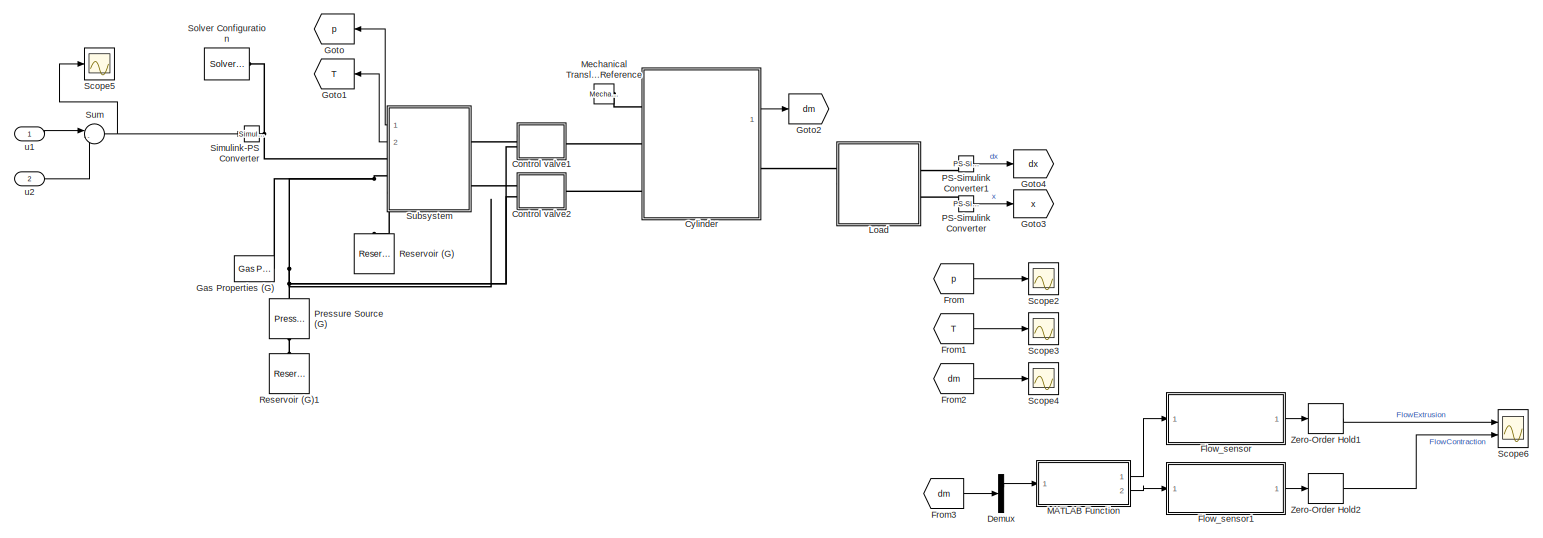
[diagram: root canvas - part 1/2, full width, middle band]
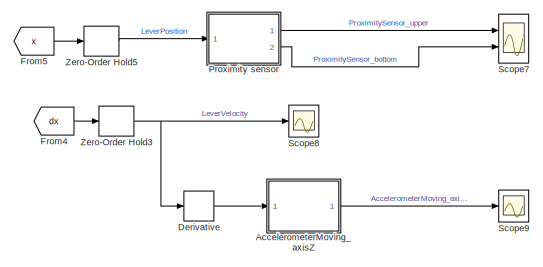
[diagram: root canvas - part 2/2, bottom right region]
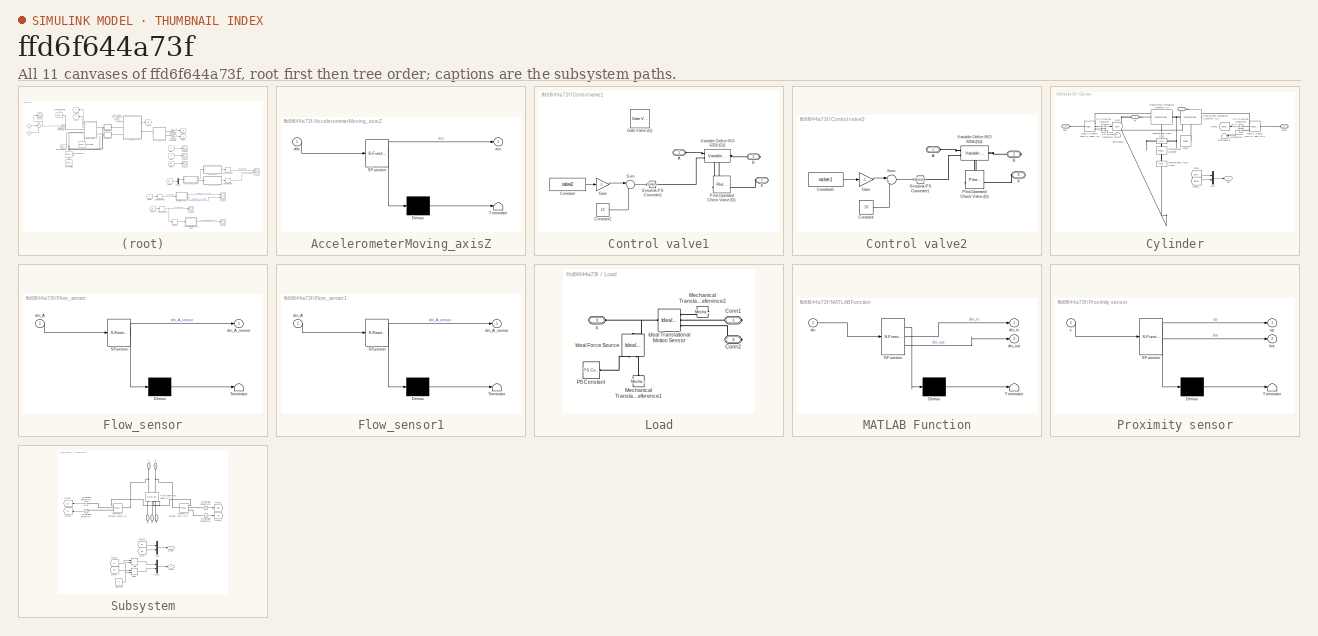
[diagram: thumbnail index - all 11 canvases of the model, root first then tree order]
MODEL slx_ffd6f644a73f
KIND model
CONFIG AbsTol = auto
CONFIG EnableMultiTasking = off
CONFIG FixedStep = Ts
CONFIG MaxStep = auto
CONFIG MinStep = auto
CONFIG RelTol = 1e-3
CONFIG SampleTimeConstraint = Unconstrained
CONFIG SolverName = VariableStepAuto
CONFIG StartTime = 0.0
CONFIG StopTime = 10
BLOCK [SubSystem] AccelerometerMoving_axisZ
  ErrorFcn = Stateflow.Translate.translate
  PermitHierarchicalResolution = ExplicitOnly
  Ports = [1, 1]
  RequestExecContextInheritance = off
  SFBlockType = MATLAB Function
  TreatAsAtomicUnit = on
BLOCK [Demux] AccelerometerMoving_axisZ/ Demux 
  Outputs = 1
  Ports = [1, 1]
BLOCK [S-Function] AccelerometerMoving_axisZ/ SFunction 
  EnableBusSupport = on
  FunctionName = sf_sfun
  Parameters = acc_C,acc_enable,acc_noise_var
  PortCounts = [1 2]
  Ports = [1, 2]
  SFcnIsStateOwnerBlock = off
  SFunctionDeploymentMode = off
  Tag = Stateflow S-Function 1
BLOCK [Terminator] AccelerometerMoving_axisZ/ Terminator 
BLOCK [Outport] AccelerometerMoving_axisZ/acc
BLOCK [Inport] AccelerometerMoving_axisZ/ddx
BLOCK [SubSystem] Control valve1
  Ports = [0, 0, 0, 0, 0, 2, 1]
  RequestExecContextInheritance = off
BLOCK [PMIOPort] Control valve1/A
  Side = Left
BLOCK [PMIOPort] Control valve1/B
  Port = 2
  Side = Right
BLOCK [Constant] Control valve1/Constant
  Value = valve2
BLOCK [Constant] Control valve1/Constant1
  Value = 10
BLOCK [Gain] Control valve1/Gain
  Gain = -1
BLOCK [Reference] Control valve1/Gate Valve (G)  REF=SimscapeFluids_lib/Gas/Valves & Orifices/Flow Control Valves/Gate Valve (G)
  Commented = on
  Ports = [0, 0, 0, 0, 0, 2, 1]
  SourceBlock = SimscapeFluids_lib/Gas/Valves & Orifices/Flow Control Valves/Gate Valve (G)
  SourceProductBaseCode = SH
  SourceType = Gate Valve (G)
BLOCK [Reference] Control valve1/Pilot-Operated Check Valve (G)  REF=SimscapeFluids_lib/Gas/Valves & Orifices/Directional Control
Valves/Pilot-Operated Check
Valve (G)
  NameLocation = top
  Ports = [0, 0, 0, 0, 0, 2, 1]
  SourceBlock = SimscapeFluids_lib/Gas/Valves & Orifices/Directional Control\nValves/Pilot-Operated Check\nValve (G)
  SourceProductBaseCode = SH
  SourceType = Pilot-Operated Check\nValve (G)
BLOCK [Reference] Control valve1/Simulink-PS Converter1  REF=nesl_utility/Simulink-PS
Converter
  Ports = [1, 0, 0, 0, 0, 0, 1]
  SourceBlock = nesl_utility/Simulink-PS\nConverter
  SourceProductBaseCode = PW,SS
  SourceType = Simulink-PS\nConverter
BLOCK [Sum] Control valve1/Sum
  Inputs = |++
  Ports = [2, 1]
BLOCK [Reference] Control valve1/Variable Orifice ISO 6358 (G)1  REF=SimscapeFluids_lib/Gas/Valves & Orifices/Variable Orifice ISO
6358 (G)
  Ports = [0, 0, 0, 0, 0, 2, 1]
  SourceBlock = SimscapeFluids_lib/Gas/Valves & Orifices/Variable Orifice ISO\n6358 (G)
  SourceProductBaseCode = SH
  SourceType = Variable Orifice ISO\n6358 (G)
BLOCK [PMIOPort] Control valve1/X
  NameLocation = top
  Port = 3
  Side = Left
BLOCK [SubSystem] Control valve2
  Ports = [0, 0, 0, 0, 0, 2, 1]
  RequestExecContextInheritance = off
BLOCK [PMIOPort] Control valve2/A
  Side = Left
BLOCK [PMIOPort] Control valve2/B
  Port = 2
  Side = Right
BLOCK [Constant] Control valve2/Constant
  Value = 10
BLOCK [Constant] Control valve2/Constant1
  Value = valve1
BLOCK [Gain] Control valve2/Gain
  Gain = -1
BLOCK [Reference] Control valve2/Pilot-Operated Check Valve (G)  REF=SimscapeFluids_lib/Gas/Valves & Orifices/Directional Control
Valves/Pilot-Operated Check
Valve (G)
  NameLocation = top
  Ports = [0, 0, 0, 0, 0, 2, 1]
  SourceBlock = SimscapeFluids_lib/Gas/Valves & Orifices/Directional Control\nValves/Pilot-Operated Check\nValve (G)
  SourceProductBaseCode = SH
  SourceType = Pilot-Operated Check\nValve (G)
BLOCK [Reference] Control valve2/Simulink-PS Converter1  REF=nesl_utility/Simulink-PS
Converter
  Ports = [1, 0, 0, 0, 0, 0, 1]
  SourceBlock = nesl_utility/Simulink-PS\nConverter
  SourceProductBaseCode = PW,SS
  SourceType = Simulink-PS\nConverter
BLOCK [Sum] Control valve2/Sum
  Inputs = |++
  Ports = [2, 1]
BLOCK [Reference] Control valve2/Variable Orifice ISO 6358 (G)1  REF=SimscapeFluids_lib/Gas/Valves & Orifices/Variable Orifice ISO
6358 (G)
  Ports = [0, 0, 0, 0, 0, 2, 1]
  SourceBlock = SimscapeFluids_lib/Gas/Valves & Orifices/Variable Orifice ISO\n6358 (G)
  SourceProductBaseCode = SH
  SourceType = Variable Orifice ISO\n6358 (G)
BLOCK [PMIOPort] Control valve2/X
  NameLocation = top
  Port = 3
  Side = Left
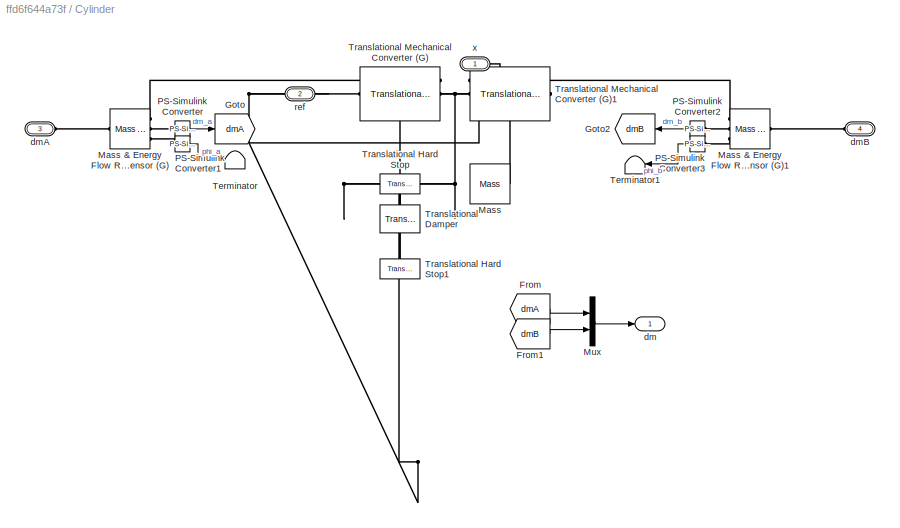
BLOCK [SubSystem] Cylinder
  Ports = [0, 1, 0, 0, 0, 3, 1]
  RequestExecContextInheritance = off
BLOCK [From] Cylinder/From
  GotoTag = dmA
BLOCK [From] Cylinder/From1
  GotoTag = dmB
  NameLocation = top
BLOCK [Goto] Cylinder/Goto
  GotoTag = dmA
BLOCK [Goto] Cylinder/Goto2
  GotoTag = dmB
  NameLocation = top
BLOCK [Reference] Cylinder/Mass  REF=fl_lib/Mechanical/Translational
Elements/Mass
  NameLocation = top
  Ports = [0, 0, 0, 0, 0, 1]
  SourceBlock = fl_lib/Mechanical/Translational\nElements/Mass
  SourceProductBaseCode = SS
  SourceType = Mass
BLOCK [Reference] Cylinder/Mass & Energy Flow Rate Sensor (G)  REF=fl_lib/Gas/Sensors/Mass & Energy Flow
Rate Sensor (G)
  Ports = [0, 0, 0, 0, 0, 1, 3]
  SourceBlock = fl_lib/Gas/Sensors/Mass & Energy Flow\nRate Sensor (G)
  SourceProductBaseCode = SS
  SourceType = Mass & Energy Flow\nRate Sensor (G)
BLOCK [Reference] Cylinder/Mass & Energy Flow Rate Sensor (G)1  REF=fl_lib/Gas/Sensors/Mass & Energy Flow
Rate Sensor (G)
  Ports = [0, 0, 0, 0, 0, 1, 3]
  SourceBlock = fl_lib/Gas/Sensors/Mass & Energy Flow\nRate Sensor (G)
  SourceProductBaseCode = SS
  SourceType = Mass & Energy Flow\nRate Sensor (G)
BLOCK [Mux] Cylinder/Mux
  DisplayOption = bar
  Inputs = 2
  Ports = [2, 1]
BLOCK [Reference] Cylinder/PS-Simulink Converter  REF=nesl_utility/PS-Simulink
Converter
  Ports = [0, 1, 0, 0, 0, 1]
  SourceBlock = nesl_utility/PS-Simulink\nConverter
  SourceProductBaseCode = PW,SS
  SourceType = PS-Simulink\nConverter
BLOCK [Reference] Cylinder/PS-Simulink Converter1  REF=nesl_utility/PS-Simulink
Converter
  Ports = [0, 1, 0, 0, 0, 1]
  SourceBlock = nesl_utility/PS-Simulink\nConverter
  SourceProductBaseCode = PW,SS
  SourceType = PS-Simulink\nConverter
BLOCK [Reference] Cylinder/PS-Simulink Converter2  REF=nesl_utility/PS-Simulink
Converter
  NameLocation = top
  Ports = [0, 1, 0, 0, 0, 1]
  SourceBlock = nesl_utility/PS-Simulink\nConverter
  SourceProductBaseCode = PW,SS
  SourceType = PS-Simulink\nConverter
BLOCK [Reference] Cylinder/PS-Simulink Converter3  REF=nesl_utility/PS-Simulink
Converter
  NameLocation = top
  Ports = [0, 1, 0, 0, 0, 1]
  SourceBlock = nesl_utility/PS-Simulink\nConverter
  SourceProductBaseCode = PW,SS
  SourceType = PS-Simulink\nConverter
BLOCK [Terminator] Cylinder/Terminator
BLOCK [Terminator] Cylinder/Terminator1
  NameLocation = top
BLOCK [Reference] Cylinder/Translational Damper  REF=fl_lib/Mechanical/Translational
Elements/Translational Damper
  NameLocation = top
  Ports = [0, 0, 0, 0, 0, 1, 1]
  SourceBlock = fl_lib/Mechanical/Translational\nElements/Translational Damper
  SourceProductBaseCode = SS
  SourceType = Translational Damper
BLOCK [Reference] Cylinder/Translational Hard Stop  REF=fl_lib/Mechanical/Translational
Elements/Translational Hard
Stop
  NameLocation = top
  Ports = [0, 0, 0, 0, 0, 1, 1]
  SourceBlock = fl_lib/Mechanical/Translational\nElements/Translational Hard\nStop
  SourceProductBaseCode = SS
  SourceType = Translational Hard\nStop
BLOCK [Reference] Cylinder/Translational Hard Stop1  REF=fl_lib/Mechanical/Translational
Elements/Translational Hard
Stop
  NameLocation = top
  Ports = [0, 0, 0, 0, 0, 1, 1]
  SourceBlock = fl_lib/Mechanical/Translational\nElements/Translational Hard\nStop
  SourceProductBaseCode = SS
  SourceType = Translational Hard\nStop
BLOCK [Reference] Cylinder/Translational Mechanical Converter (G)  REF=fl_lib/Gas/Elements/Translational
Mechanical Converter
(G)
  Ports = [0, 0, 0, 0, 0, 3, 1]
  SourceBlock = fl_lib/Gas/Elements/Translational\nMechanical Converter\n(G)
  SourceProductBaseCode = SS
  SourceType = Translational\nMechanical Converter\n(G)
BLOCK [Reference] Cylinder/Translational Mechanical Converter (G)1  REF=fl_lib/Gas/Elements/Translational
Mechanical Converter
(G)
  NameLocation = top
  Ports = [0, 0, 0, 0, 0, 3, 1]
  SourceBlock = fl_lib/Gas/Elements/Translational\nMechanical Converter\n(G)
  SourceProductBaseCode = SS
  SourceType = Translational\nMechanical Converter\n(G)
BLOCK [Outport] Cylinder/dm
BLOCK [PMIOPort] Cylinder/dmA
  Port = 3
  Side = Left
BLOCK [PMIOPort] Cylinder/dmB
  NameLocation = top
  Port = 4
  Side = Left
BLOCK [PMIOPort] Cylinder/ref
  Port = 2
  Side = Left
BLOCK [PMIOPort] Cylinder/x
  Side = Right
BLOCK [Demux] Demux
  Outputs = 2
  Ports = [1, 2]
BLOCK [Derivative] Derivative
BLOCK [SubSystem] Flow_sensor
  ErrorFcn = Stateflow.Translate.translate
  PermitHierarchicalResolution = ExplicitOnly
  Ports = [1, 1]
  RequestExecContextInheritance = off
  SFBlockType = MATLAB Function
  TreatAsAtomicUnit = on
BLOCK [Demux] Flow_sensor/ Demux 
  Outputs = 1
  Ports = [1, 1]
BLOCK [S-Function] Flow_sensor/ SFunction 
  EnableBusSupport = on
  FunctionName = sf_sfun
  Parameters = flow_C,flow_C_ratio,flow_noise_var
  PortCounts = [1 2]
  Ports = [1, 2]
  SFcnIsStateOwnerBlock = off
  SFunctionDeploymentMode = off
  Tag = Stateflow S-Function 3
BLOCK [Terminator] Flow_sensor/ Terminator 
BLOCK [Inport] Flow_sensor/dm_A
BLOCK [Outport] Flow_sensor/dm_A_sensor
BLOCK [SubSystem] Flow_sensor1
  ErrorFcn = Stateflow.Translate.translate
  PermitHierarchicalResolution = ExplicitOnly
  Ports = [1, 1]
  RequestExecContextInheritance = off
  SFBlockType = MATLAB Function
  TreatAsAtomicUnit = on
BLOCK [Demux] Flow_sensor1/ Demux 
  Outputs = 1
  Ports = [1, 1]
BLOCK [S-Function] Flow_sensor1/ SFunction 
  EnableBusSupport = on
  FunctionName = sf_sfun
  Parameters = flow_C,flow_C_ratio,flow_noise_var
  PortCounts = [1 2]
  Ports = [1, 2]
  SFcnIsStateOwnerBlock = off
  SFunctionDeploymentMode = off
  Tag = Stateflow S-Function 5
BLOCK [Terminator] Flow_sensor1/ Terminator 
BLOCK [Inport] Flow_sensor1/dm_A
BLOCK [Outport] Flow_sensor1/dm_A_sensor
BLOCK [From] From
  GotoTag = p
  NameLocation = top
BLOCK [From] From1
  GotoTag = T
  NameLocation = top
BLOCK [From] From2
  GotoTag = dm
BLOCK [From] From3
  GotoTag = dm
BLOCK [From] From4
  GotoTag = dx
BLOCK [From] From5
  GotoTag = x
BLOCK [Reference] Gas Properties (G)  REF=fl_lib/Gas/Utilities/Gas Properties (G)
  Ports = [0, 0, 0, 0, 0, 0, 1]
  SourceBlock = fl_lib/Gas/Utilities/Gas Properties (G)
  SourceProductBaseCode = SS
  SourceType = Gas Properties (G)
BLOCK [Goto] Goto
  GotoTag = p
  NameLocation = top
BLOCK [Goto] Goto1
  GotoTag = T
  NameLocation = top
BLOCK [Goto] Goto2
  GotoTag = dm
BLOCK [Goto] Goto3
  GotoTag = x
BLOCK [Goto] Goto4
  GotoTag = dx
BLOCK [SubSystem] Load
  Ports = [0, 0, 0, 0, 0, 1, 2]
  RequestExecContextInheritance = off
BLOCK [PMIOPort] Load/Conn1
  Side = Right
BLOCK [PMIOPort] Load/Conn2
  Port = 2
  Side = Right
BLOCK [Reference] Load/Ideal Force Source  REF=fl_lib/Mechanical/Mechanical Sources/Ideal Force Source
  NameLocation = right
  Ports = [0, 0, 0, 0, 0, 1, 2]
  SourceBlock = fl_lib/Mechanical/Mechanical Sources/Ideal Force Source
  SourceProductBaseCode = SS
  SourceType = Ideal Force Source
BLOCK [Reference] Load/Ideal Translational Motion Sensor  REF=fl_lib/Mechanical/Mechanical Sensors/Ideal Translational
Motion Sensor
  Ports = [0, 0, 0, 0, 0, 1, 3]
  SourceBlock = fl_lib/Mechanical/Mechanical Sensors/Ideal Translational\nMotion Sensor
  SourceProductBaseCode = SS
  SourceType = Ideal Translational\nMotion Sensor
BLOCK [Reference] Load/Mechanical Translational Reference1  REF=fl_lib/Mechanical/Translational
Elements/Mechanical
Translational
Reference
  NameLocation = right
  Ports = [0, 0, 0, 0, 0, 1]
  SourceBlock = fl_lib/Mechanical/Translational\nElements/Mechanical\nTranslational\nReference
  SourceProductBaseCode = SS
  SourceType = Mechanical\nTranslational\nReference
BLOCK [Reference] Load/Mechanical Translational Reference2  REF=fl_lib/Mechanical/Translational
Elements/Mechanical
Translational
Reference
  NameLocation = top
  Ports = [0, 0, 0, 0, 0, 1]
  SourceBlock = fl_lib/Mechanical/Translational\nElements/Mechanical\nTranslational\nReference
  SourceProductBaseCode = SS
  SourceType = Mechanical\nTranslational\nReference
BLOCK [Reference] Load/PS Constant  REF=fl_lib/Physical Signals/Sources/PS Constant
  Ports = [0, 0, 0, 0, 0, 0, 1]
  SourceBlock = fl_lib/Physical Signals/Sources/PS Constant
  SourceProductBaseCode = SS
  SourceType = PS Constant
BLOCK [PMIOPort] Load/x
  Port = 3
  Side = Left
BLOCK [SubSystem] MATLAB Function
  ErrorFcn = Stateflow.Translate.translate
  PermitHierarchicalResolution = ExplicitOnly
  Ports = [1, 2]
  RequestExecContextInheritance = off
  SFBlockType = MATLAB Function
  TreatAsAtomicUnit = on
BLOCK [Demux] MATLAB Function/ Demux 
  Outputs = 1
  Ports = [1, 1]
BLOCK [S-Function] MATLAB Function/ SFunction 
  EnableBusSupport = on
  FunctionName = sf_sfun
  PortCounts = [1 3]
  Ports = [1, 3]
  SFcnIsStateOwnerBlock = off
  SFunctionDeploymentMode = off
  Tag = Stateflow S-Function 2
BLOCK [Terminator] MATLAB Function/ Terminator 
BLOCK [Inport] MATLAB Function/dm
BLOCK [Outport] MATLAB Function/dm_in
BLOCK [Outport] MATLAB Function/dm_out
  Port = 2
BLOCK [Reference] Mechanical Translational Reference  REF=fl_lib/Mechanical/Translational
Elements/Mechanical
Translational
Reference
  Ports = [0, 0, 0, 0, 0, 1]
  SourceBlock = fl_lib/Mechanical/Translational\nElements/Mechanical\nTranslational\nReference
  SourceProductBaseCode = SS
  SourceType = Mechanical\nTranslational\nReference
BLOCK [Reference] PS-Simulink Converter  REF=nesl_utility/PS-Simulink
Converter
  Ports = [0, 1, 0, 0, 0, 1]
  SourceBlock = nesl_utility/PS-Simulink\nConverter
  SourceProductBaseCode = PW,SS
  SourceType = PS-Simulink\nConverter
BLOCK [Reference] PS-Simulink Converter1  REF=nesl_utility/PS-Simulink
Converter
  Ports = [0, 1, 0, 0, 0, 1]
  SourceBlock = nesl_utility/PS-Simulink\nConverter
  SourceProductBaseCode = PW,SS
  SourceType = PS-Simulink\nConverter
BLOCK [Reference] Pressure Source (G)  REF=fl_lib/Gas/Sources/Pressure Source (G)
  NameLocation = right
  Ports = [0, 0, 0, 0, 0, 1, 1]
  SourceBlock = fl_lib/Gas/Sources/Pressure Source (G)
  SourceProductBaseCode = SS
  SourceType = Pressure Source (G)
BLOCK [SubSystem] Proximity sensor
  ErrorFcn = Stateflow.Translate.translate
  PermitHierarchicalResolution = ExplicitOnly
  Ports = [1, 2]
  RequestExecContextInheritance = off
  SFBlockType = MATLAB Function
  TreatAsAtomicUnit = on
BLOCK [Demux] Proximity sensor/ Demux 
  Outputs = 1
  Ports = [1, 1]
BLOCK [S-Function] Proximity sensor/ SFunction 
  EnableBusSupport = on
  FunctionName = sf_sfun
  Parameters = prox_bot_band,prox_up_band
  PortCounts = [1 3]
  Ports = [1, 3]
  SFcnIsStateOwnerBlock = off
  SFunctionDeploymentMode = off
  Tag = Stateflow S-Function 4
BLOCK [Terminator] Proximity sensor/ Terminator 
BLOCK [Outport] Proximity sensor/bot
  Port = 2
BLOCK [Outport] Proximity sensor/up
BLOCK [Inport] Proximity sensor/x
BLOCK [Reference] Reservoir (G)  REF=fl_lib/Gas/Elements/Reservoir (G)
  NameLocation = right
  Ports = [0, 0, 0, 0, 0, 1]
  SourceBlock = fl_lib/Gas/Elements/Reservoir (G)
  SourceProductBaseCode = SS
  SourceType = Reservoir (G)
BLOCK [Reference] Reservoir (G)1  REF=fl_lib/Gas/Elements/Reservoir (G)
  NameLocation = right
  Ports = [0, 0, 0, 0, 0, 1]
  SourceBlock = fl_lib/Gas/Elements/Reservoir (G)
  SourceProductBaseCode = SS
  SourceType = Reservoir (G)
BLOCK [Scope] Scope2
  Floating = off
  NumInputPorts = 1
  Ports = [1]
  ScopeSpecificationString = Simulink.scopes.TimeScopeBlockCfg('CurrentConfiguration', extmgr.ConfigurationSet(extmgr.Configuration('Core','General UI',true),extmgr.Configuration('Core','Source UI',true),extmgr.Configuration('Sources','WiredSimulink',true,'DataLoggingVariableName','ScopeData2'),extmgr.Configuration('Visuals','Time Domain',true),extmgr.Configuration('Tools','Plot Navigation',true),extmgr.Configuration('Tools',...<+40ch>
BLOCK [Scope] Scope3
  Floating = off
  NumInputPorts = 1
  Ports = [1]
  ScopeSpecificationString = Simulink.scopes.TimeScopeBlockCfg('CurrentConfiguration', extmgr.ConfigurationSet(extmgr.Configuration('Core','General UI',true),extmgr.Configuration('Core','Source UI',true),extmgr.Configuration('Sources','WiredSimulink',true,'DataLoggingVariableName','ScopeData3'),extmgr.Configuration('Visuals','Time Domain',true),extmgr.Configuration('Tools','Plot Navigation',true),extmgr.Configuration('Tools',...<+40ch>
BLOCK [Scope] Scope4
  Floating = off
  NumInputPorts = 1
  Ports = [1]
  ScopeSpecificationString = Simulink.scopes.TimeScopeBlockCfg('CurrentConfiguration', extmgr.ConfigurationSet(extmgr.Configuration('Core','General UI',true),extmgr.Configuration('Core','Source UI',true),extmgr.Configuration('Sources','WiredSimulink',true,'DataLoggingVariableName','ScopeData4'),extmgr.Configuration('Visuals','Time Domain',true),extmgr.Configuration('Tools','Plot Navigation',true),extmgr.Configuration('Tools',...<+40ch>
BLOCK [Scope] Scope5
  Floating = off
  NumInputPorts = 1
  Ports = [1]
  ScopeSpecificationString = Simulink.scopes.TimeScopeBlockCfg('CurrentConfiguration', extmgr.ConfigurationSet(extmgr.Configuration('Core','General UI',true),extmgr.Configuration('Core','Source UI',true),extmgr.Configuration('Sources','WiredSimulink',true,'DataLoggingVariableName','ScopeData5'),extmgr.Configuration('Visuals','Time Domain',true,'SerializedDisplays',{struct('MinYLimReal','-1.25','MaxYLimReal','1.25','YLabelReal...<+1374ch>
BLOCK [Scope] Scope6
  Floating = off
  NumInputPorts = 2
  Ports = [2]
  ScopeSpecificationString = Simulink.scopes.TimeScopeBlockCfg('CurrentConfiguration', extmgr.ConfigurationSet(extmgr.Configuration('Core','General UI',true),extmgr.Configuration('Core','Source UI',true),extmgr.Configuration('Sources','WiredSimulink',true,'DataLoggingVariableName','ScopeData1'),extmgr.Configuration('Visuals','Time Domain',true,'SerializedDisplays',{struct('MinYLimReal','-16.8961','MaxYLimReal','152.06488','YL...<+1428ch>
BLOCK [Scope] Scope7
  Floating = off
  NumInputPorts = 2
  Ports = [2]
  ScopeSpecificationString = Simulink.scopes.TimeScopeBlockCfg('CurrentConfiguration', extmgr.ConfigurationSet(extmgr.Configuration('Core','General UI',true),extmgr.Configuration('Core','Source UI',true),extmgr.Configuration('Sources','WiredSimulink',true,'DataLoggingVariableName','ScopeData2'),extmgr.Configuration('Visuals','Time Domain',true,'SerializedDisplays',{struct('MinYLimReal','-0.125','MaxYLimReal','1.125','YLabelRe...<+2045ch>
BLOCK [Scope] Scope8
  Floating = off
  NumInputPorts = 1
  Ports = [1]
  ScopeSpecificationString = Simulink.scopes.TimeScopeBlockCfg('CurrentConfiguration', extmgr.ConfigurationSet(extmgr.Configuration('Core','General UI',true),extmgr.Configuration('Core','Source UI',true),extmgr.Configuration('Sources','WiredSimulink',true,'DataLoggingVariableName','ScopeData3'),extmgr.Configuration('Visuals','Time Domain',true,'SerializedDisplays',{struct('MinYLimReal','-1.10887','MaxYLimReal','0.38935','YLab...<+1446ch>
BLOCK [Scope] Scope9
  Floating = off
  NumInputPorts = 1
  Ports = [1]
  ScopeSpecificationString = Simulink.scopes.TimeScopeBlockCfg('CurrentConfiguration', extmgr.ConfigurationSet(extmgr.Configuration('Core','General UI',true),extmgr.Configuration('Core','Source UI',true),extmgr.Configuration('Sources','WiredSimulink',true,'DataLoggingVariableName','ScopeData4'),extmgr.Configuration('Visuals','Time Domain',true,'SerializedDisplays',{struct('MinYLimReal','-37.20441','MaxYLimReal','18.89797','YL...<+1464ch>
BLOCK [Reference] Simulink-PS Converter  REF=nesl_utility/Simulink-PS
Converter
  Ports = [1, 0, 0, 0, 0, 0, 1]
  SourceBlock = nesl_utility/Simulink-PS\nConverter
  SourceProductBaseCode = PW,SS
  SourceType = Simulink-PS\nConverter
BLOCK [Reference] Solver Configuration  REF=nesl_utility/Solver
Configuration
  Ports = [0, 0, 0, 0, 0, 0, 1]
  SourceBlock = nesl_utility/Solver\nConfiguration
  SourceProductBaseCode = PW,SS
  SourceType = Solver\nConfiguration
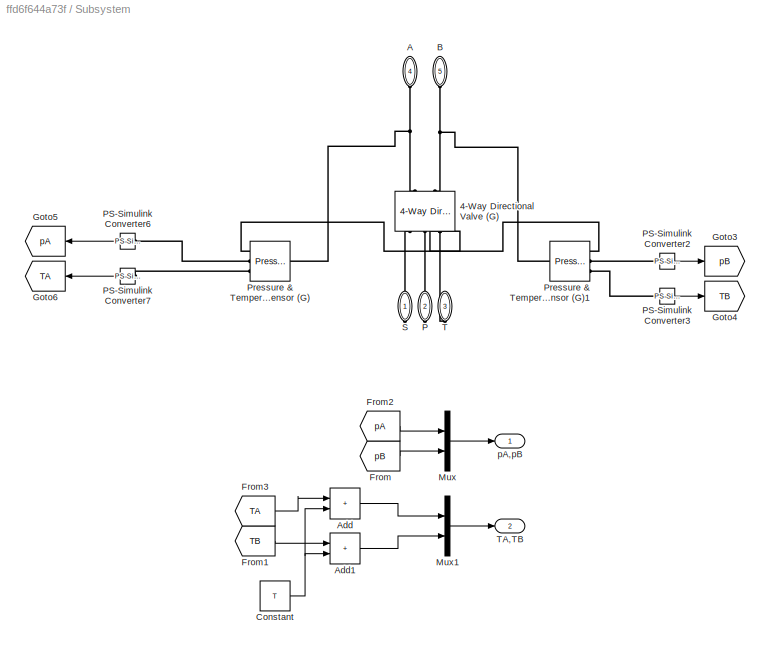
BLOCK [SubSystem] Subsystem
  NameLocation = top
  Ports = [0, 2, 0, 0, 0, 2, 3]
  RequestExecContextInheritance = off
BLOCK [Reference] Subsystem/4-Way Directional Valve (G)  REF=SimscapeFluids_lib/Gas/Valves & Orifices/Directional Control
Valves/4-Way Directional
Valve (G)
  NameLocation = right
  Ports = [0, 0, 0, 0, 0, 2, 3]
  SourceBlock = SimscapeFluids_lib/Gas/Valves & Orifices/Directional Control\nValves/4-Way Directional\nValve (G)
  SourceProductBaseCode = SH
  SourceType = 4-Way Directional Valve (Gas)
BLOCK [PMIOPort] Subsystem/A
  NameLocation = right
  Port = 4
  Side = Left
BLOCK [Sum] Subsystem/Add
  IconShape = rectangular
  Ports = [2, 1]
BLOCK [Sum] Subsystem/Add1
  IconShape = rectangular
  Ports = [2, 1]
BLOCK [PMIOPort] Subsystem/B
  NameLocation = right
  Port = 5
  Side = Left
BLOCK [Constant] Subsystem/Constant
  Value = T
BLOCK [From] Subsystem/From
  GotoTag = pB
BLOCK [From] Subsystem/From1
  GotoTag = TB
BLOCK [From] Subsystem/From2
  GotoTag = pA
  NameLocation = top
BLOCK [From] Subsystem/From3
  GotoTag = TA
  NameLocation = top
BLOCK [Goto] Subsystem/Goto3
  GotoTag = pB
BLOCK [Goto] Subsystem/Goto4
  GotoTag = TB
BLOCK [Goto] Subsystem/Goto5
  GotoTag = pA
BLOCK [Goto] Subsystem/Goto6
  GotoTag = TA
BLOCK [Mux] Subsystem/Mux
  DisplayOption = bar
  Inputs = 2
  Ports = [2, 1]
BLOCK [Mux] Subsystem/Mux1
  DisplayOption = bar
  Inputs = 2
  Ports = [2, 1]
BLOCK [PMIOPort] Subsystem/P
  NameLocation = right
  Port = 2
  Side = Right
BLOCK [Reference] Subsystem/PS-Simulink Converter2  REF=nesl_utility/PS-Simulink
Converter
  Ports = [0, 1, 0, 0, 0, 1]
  SourceBlock = nesl_utility/PS-Simulink\nConverter
  SourceProductBaseCode = PW,SS
  SourceType = PS-Simulink\nConverter
BLOCK [Reference] Subsystem/PS-Simulink Converter3  REF=nesl_utility/PS-Simulink
Converter
  Ports = [0, 1, 0, 0, 0, 1]
  SourceBlock = nesl_utility/PS-Simulink\nConverter
  SourceProductBaseCode = PW,SS
  SourceType = PS-Simulink\nConverter
BLOCK [Reference] Subsystem/PS-Simulink Converter6  REF=nesl_utility/PS-Simulink
Converter
  Ports = [0, 1, 0, 0, 0, 1]
  SourceBlock = nesl_utility/PS-Simulink\nConverter
  SourceProductBaseCode = PW,SS
  SourceType = PS-Simulink\nConverter
BLOCK [Reference] Subsystem/PS-Simulink Converter7  REF=nesl_utility/PS-Simulink
Converter
  Ports = [0, 1, 0, 0, 0, 1]
  SourceBlock = nesl_utility/PS-Simulink\nConverter
  SourceProductBaseCode = PW,SS
  SourceType = PS-Simulink\nConverter
BLOCK [Reference] Subsystem/Pressure & Temperature Sensor (G)  REF=fl_lib/Gas/Sensors/Pressure &
Temperature Sensor
(G)
  Ports = [0, 0, 0, 0, 0, 1, 3]
  SourceBlock = fl_lib/Gas/Sensors/Pressure &\nTemperature Sensor\n(G)
  SourceProductBaseCode = SS
  SourceType = Pressure &\nTemperature Sensor\n(G)
BLOCK [Reference] Subsystem/Pressure & Temperature Sensor (G)1  REF=fl_lib/Gas/Sensors/Pressure &
Temperature Sensor
(G)
  Ports = [0, 0, 0, 0, 0, 1, 3]
  SourceBlock = fl_lib/Gas/Sensors/Pressure &\nTemperature Sensor\n(G)
  SourceProductBaseCode = SS
  SourceType = Pressure &\nTemperature Sensor\n(G)
BLOCK [PMIOPort] Subsystem/S
  NameLocation = left
  Side = Right
BLOCK [PMIOPort] Subsystem/T
  NameLocation = left
  Port = 3
  Side = Right
BLOCK [Outport] Subsystem/TA,TB
  Port = 2
BLOCK [Outport] Subsystem/pA,pB
BLOCK [Sum] Sum
  Inputs = |-+
  Ports = [2, 1]
BLOCK [ZeroOrderHold] Zero-Order Hold1
  SampleTime = Ts
BLOCK [ZeroOrderHold] Zero-Order Hold2
  SampleTime = Ts
BLOCK [ZeroOrderHold] Zero-Order Hold3
  SampleTime = Ts
BLOCK [ZeroOrderHold] Zero-Order Hold5
  SampleTime = Ts
BLOCK [Inport] u1
BLOCK [Inport] u2
  Port = 2
LINE AccelerometerMoving_axisZ:1 -> Scope9:1
LINE Control valve1/Constant1:1 -> Control valve1/Sum:2
LINE Control valve1/Constant:1 -> Control valve1/Gain:1
LINE Control valve1/Gain:1 -> Control valve1/Sum:1
LINE Control valve1/Sum:1 -> Control valve1/Simulink-PS Converter1:1
LINE Control valve2/Constant1:1 -> Control valve2/Gain:1
LINE Control valve2/Constant:1 -> Control valve2/Sum:2
LINE Control valve2/Gain:1 -> Control valve2/Sum:1
LINE Control valve2/Sum:1 -> Control valve2/Simulink-PS Converter1:1
LINE Cylinder/From1:1 -> Cylinder/Mux:2
LINE Cylinder/From:1 -> Cylinder/Mux:1
LINE Cylinder/Mux:1 -> Cylinder/dm:1
LINE Cylinder/PS-Simulink Converter1:1 -> Cylinder/Terminator:1
LINE Cylinder/PS-Simulink Converter2:1 -> Cylinder/Goto2:1
LINE Cylinder/PS-Simulink Converter3:1 -> Cylinder/Terminator1:1
LINE Cylinder/PS-Simulink Converter:1 -> Cylinder/Goto:1
LINE Cylinder:1 -> Goto2:1
LINE Demux:1 -> MATLAB Function:1
LINE Derivative:1 -> AccelerometerMoving_axisZ:1
LINE Flow_sensor1:1 -> Zero-Order Hold2:1
LINE Flow_sensor:1 -> Zero-Order Hold1:1
LINE From1:1 -> Scope3:1
LINE From2:1 -> Scope4:1
LINE From3:1 -> Demux:1
LINE From4:1 -> Zero-Order Hold3:1
LINE From5:1 -> Zero-Order Hold5:1
LINE From:1 -> Scope2:1
LINE MATLAB Function:1 -> Flow_sensor:1
LINE MATLAB Function:2 -> Flow_sensor1:1
LINE PS-Simulink Converter1:1 -> Goto4:1
LINE PS-Simulink Converter:1 -> Goto3:1
LINE Proximity sensor:1 -> Scope7:1
LINE Proximity sensor:2 -> Scope7:2
LINE Subsystem/Add1:1 -> Subsystem/Mux1:2
LINE Subsystem/Add:1 -> Subsystem/Mux1:1
NET Subsystem/Constant:1 -> Subsystem/Add1:2, Subsystem/Add:2
LINE Subsystem/From1:1 -> Subsystem/Add1:1
LINE Subsystem/From2:1 -> Subsystem/Mux:1
LINE Subsystem/From3:1 -> Subsystem/Add:1
LINE Subsystem/From:1 -> Subsystem/Mux:2
LINE Subsystem/Mux1:1 -> Subsystem/TA,TB:1
LINE Subsystem/Mux:1 -> Subsystem/pA,pB:1
LINE Subsystem/PS-Simulink Converter2:1 -> Subsystem/Goto3:1
LINE Subsystem/PS-Simulink Converter3:1 -> Subsystem/Goto4:1
LINE Subsystem/PS-Simulink Converter6:1 -> Subsystem/Goto5:1
LINE Subsystem/PS-Simulink Converter7:1 -> Subsystem/Goto6:1
LINE Subsystem:1 -> Goto:1
LINE Subsystem:2 -> Goto1:1
NET Sum:1 -> Scope5:1, Simulink-PS Converter:1
LINE Zero-Order Hold1:1 -> Scope6:1
LINE Zero-Order Hold2:1 -> Scope6:2
NET Zero-Order Hold3:1 -> Derivative:1, Scope8:1
LINE Zero-Order Hold5:1 -> Proximity sensor:1
LINE u1:1 -> Sum:1
LINE u2:1 -> Sum:2
PNET net1: Control valve1/A:RConn1 -- Control valve1/Pilot-Operated Check Valve (G):RConn1 -- Control valve1/Variable Orifice ISO 6358 (G)1:LConn1
PNET net2: Control valve1/B:RConn1 -- Control valve1/Pilot-Operated Check Valve (G):LConn1 -- Control valve1/Variable Orifice ISO 6358 (G)1:RConn1
PLINE Control valve1/Pilot-Operated Check Valve (G):LConn2 -- Control valve1/X:RConn1
PLINE Control valve1/Simulink-PS Converter1:RConn1 -- Control valve1/Variable Orifice ISO 6358 (G)1:LConn2
PLINE Control valve1:LConn1 -- Subsystem:LConn1
PNET net3: Control valve1:LConn2 -- Control valve2:LConn2 -- Gas Properties (G):RConn1 -- Pressure Source (G):RConn1 -- Subsystem:RConn2
PLINE Control valve1:RConn1 -- Cylinder:LConn2
PNET net4: Control valve2/A:RConn1 -- Control valve2/Pilot-Operated Check Valve (G):RConn1 -- Control valve2/Variable Orifice ISO 6358 (G)1:LConn1
PNET net5: Control valve2/B:RConn1 -- Control valve2/Pilot-Operated Check Valve (G):LConn1 -- Control valve2/Variable Orifice ISO 6358 (G)1:RConn1
PLINE Control valve2/Pilot-Operated Check Valve (G):LConn2 -- Control valve2/X:RConn1
PLINE Control valve2/Simulink-PS Converter1:RConn1 -- Control valve2/Variable Orifice ISO 6358 (G)1:LConn2
PLINE Control valve2:LConn1 -- Subsystem:LConn2
PLINE Control valve2:RConn1 -- Cylinder:LConn3
PLINE Cylinder/Mass & Energy Flow Rate Sensor (G)1:LConn1 -- Cylinder/dmB:RConn1
PLINE Cylinder/Mass & Energy Flow Rate Sensor (G)1:RConn1 -- Cylinder/Translational Mechanical Converter (G)1:LConn1
PLINE Cylinder/Mass & Energy Flow Rate Sensor (G)1:RConn2 -- Cylinder/PS-Simulink Converter2:LConn1
PLINE Cylinder/Mass & Energy Flow Rate Sensor (G)1:RConn3 -- Cylinder/PS-Simulink Converter3:LConn1
PLINE Cylinder/Mass & Energy Flow Rate Sensor (G):LConn1 -- Cylinder/dmA:RConn1
PLINE Cylinder/Mass & Energy Flow Rate Sensor (G):RConn1 -- Cylinder/Translational Mechanical Converter (G):LConn1
PLINE Cylinder/Mass & Energy Flow Rate Sensor (G):RConn2 -- Cylinder/PS-Simulink Converter:LConn1
PLINE Cylinder/Mass & Energy Flow Rate Sensor (G):RConn3 -- Cylinder/PS-Simulink Converter1:LConn1
PNET net6: Cylinder/Mass:LConn1 -- Cylinder/Translational Damper:LConn1 -- Cylinder/Translational Hard Stop1:LConn1 -- Cylinder/Translational Hard Stop:LConn1 -- Cylinder/Translational Mechanical Converter (G)1:RConn1 -- Cylinder/Translational Mechanical Converter (G):RConn1 -- Cylinder/x:RConn1
PNET net7: Cylinder/Translational Damper:RConn1 -- Cylinder/Translational Hard Stop1:RConn1 -- Cylinder/Translational Hard Stop:RConn1 -- Cylinder/Translational Mechanical Converter (G)1:LConn2 -- Cylinder/Translational Mechanical Converter (G):LConn2 -- Cylinder/ref:RConn1
PLINE Cylinder:LConn1 -- Mechanical Translational Reference:LConn1
PLINE Cylinder:RConn1 -- Load:LConn1
PLINE Load/Conn1:RConn1 -- Load/Ideal Translational Motion Sensor:RConn2
PLINE Load/Conn2:RConn1 -- Load/Ideal Translational Motion Sensor:RConn3
PNET net8: Load/Ideal Force Source:LConn1 -- Load/Ideal Translational Motion Sensor:LConn1 -- Load/x:RConn1
PLINE Load/Ideal Force Source:RConn1 -- Load/PS Constant:RConn1
PLINE Load/Ideal Force Source:RConn2 -- Load/Mechanical Translational Reference1:LConn1
PLINE Load/Ideal Translational Motion Sensor:RConn1 -- Load/Mechanical Translational Reference2:LConn1
PLINE Load:RConn1 -- PS-Simulink Converter1:LConn1
PLINE Load:RConn2 -- PS-Simulink Converter:LConn1
PLINE Pressure Source (G):LConn1 -- Reservoir (G)1:LConn1
PLINE Reservoir (G):LConn1 -- Subsystem:RConn3
PNET net9: Simulink-PS Converter:RConn1 -- Solver Configuration:RConn1 -- Subsystem:RConn1
PNET net10: Subsystem/4-Way Directional Valve (G):LConn1 -- Subsystem/A:RConn1 -- Subsystem/Pressure & Temperature Sensor (G):LConn1
PNET net11: Subsystem/4-Way Directional Valve (G):LConn2 -- Subsystem/B:RConn1 -- Subsystem/Pressure & Temperature Sensor (G)1:LConn1
PLINE Subsystem/4-Way Directional Valve (G):RConn1 -- Subsystem/S:RConn1
PLINE Subsystem/4-Way Directional Valve (G):RConn2 -- Subsystem/P:RConn1
PNET net12: Subsystem/4-Way Directional Valve (G):RConn3 -- Subsystem/Pressure & Temperature Sensor (G)1:RConn1 -- Subsystem/Pressure & Temperature Sensor (G):RConn1 -- Subsystem/T:RConn1
PLINE Subsystem/PS-Simulink Converter2:LConn1 -- Subsystem/Pressure & Temperature Sensor (G)1:RConn2
PLINE Subsystem/PS-Simulink Converter3:LConn1 -- Subsystem/Pressure & Temperature Sensor (G)1:RConn3
PLINE Subsystem/PS-Simulink Converter6:LConn1 -- Subsystem/Pressure & Temperature Sensor (G):RConn2
PLINE Subsystem/PS-Simulink Converter7:LConn1 -- Subsystem/Pressure & Temperature Sensor (G):RConn3
note: NET lines group one-source signal fan-out (src -> all destinations, sorted); 1:1 wires keep LINE; PNET lines group multi-terminal physical nets as a canonical sorted terminal list (undirected conserving connections); 2-terminal nets keep the pairwise PLINE form
CHART AccelerometerMoving_axisZ states=1 transitions=1
  STATE_LABEL 'eML_blk_kernel()'
  STATE_LABEL 'SCRIPT:\nfunction acc = fcn(ddx, acc_noise_var, acc_enable, acc_C)\n\nacc = acc_enable * acc_C * ddx + acc_noise_var * rand() + 1;\nend'
CHART MATLAB Function states=1 transitions=1
  STATE_LABEL 'eML_blk_kernel()'
  STATE_LABEL 'SCRIPT:\nfunction [dm_in, dm_out]= fcn(dm)\nif dm > 0\n    dm_in = dm;\n    dm_out = 0;\nelseif dm < 0\n    dm_in = 0;\n    dm_out = abs(dm);\nelse\n    dm_in = 0;\n    dm_out = 0;\nend\nend\n'
CHART Flow_sensor states=1 transitions=1
  STATE_LABEL 'eML_blk_kernel()'
  STATE_LABEL 'SCRIPT:\nfunction dm_A_sensor = fcn(dm_A, flow_C, flow_C_ratio, flow_noise_var)\ndm_A_sensor = flow_C*(flow_C_ratio*dm_A + flow_noise_var*rand());'
CHART Proximity sensor states=1 transitions=1
  STATE_LABEL 'eML_blk_kernel()'
  STATE_LABEL 'SCRIPT:\nfunction [up,bot]= fcn(x, prox_up_band, prox_bot_band)\nif x >= prox_up_band\n    up = 1; bot = 0;\nelseif x <= prox_bot_band\n    bot = 1; up = 0;\nelse\n    bot = 0;\n    up = 0;\nend\n'
CHART Flow_sensor1 states=1 transitions=1
  STATE_LABEL 'eML_blk_kernel()'
  STATE_LABEL 'SCRIPT:\nfunction dm_A_sensor = fcn(dm_A, flow_C, flow_C_ratio, flow_noise_var)\ndm_A_sensor = flow_C*(flow_C_ratio*dm_A + flow_noise_var*rand());'
CHART  states=0 transitions=0
CHART  states=0 transitions=0
CHART  states=0 transitions=0
CHART  states=0 transitions=0
CHART  states=0 transitions=0
